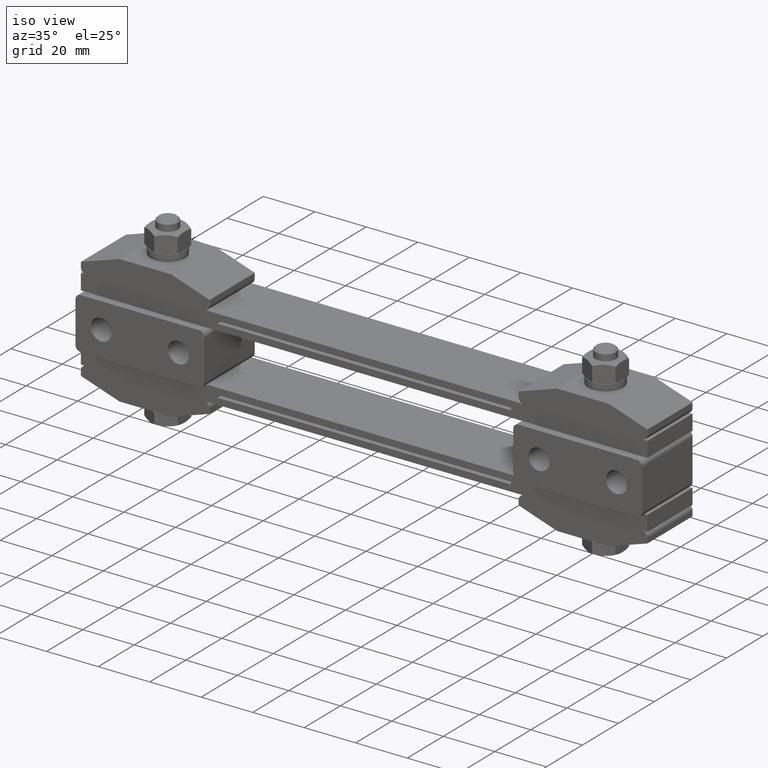
[diagram: clean part render]
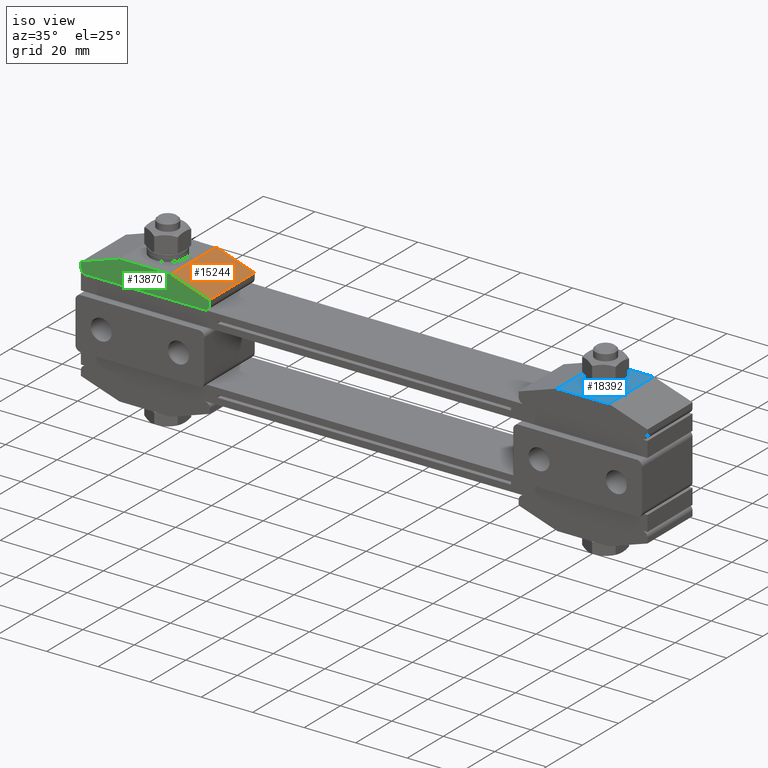
[diagram: same view with three faces highlighted in distinct colors, each labeled with its STEP entity id]
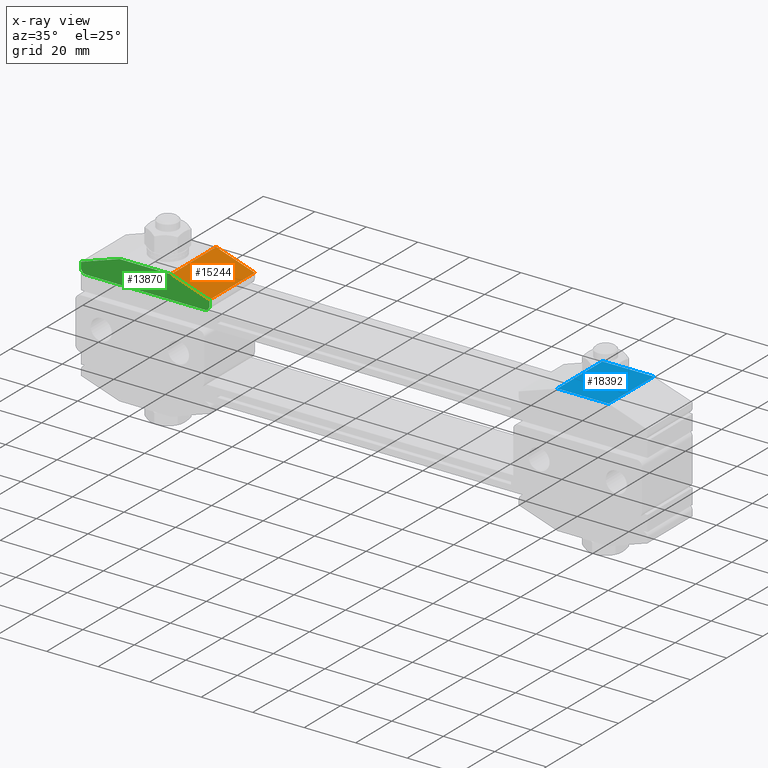
[diagram: x-ray of the same camera — body ghosted, the three highlighted faces saturated]
A machine part, iso view with three faces highlighted in distinct colors.
The next image is the same camera in x-ray (body ghosted, the three faces saturated) — at least one of them is partly hidden behind the body in this view.
Their STEP definitions:

[orange] entity #15244 — the highlighted planar face has unit normal (-0.3162, 0, -0.9487).
#329 = VERTEX_POINT ( 'NONE', #20769 ) ;
#831 = ORIENTED_EDGE ( 'NONE', *, *, #15313, .F. ) ;
#1012 = VECTOR ( 'NONE', #14471, 1000.000000000000100 ) ;
#1293 = EDGE_CURVE ( 'NONE', #21486, #16862, #8346, .T. ) ;
#1310 = CARTESIAN_POINT ( 'NONE',  ( -59.99999999999998600, -14.00000000000000200, 32.49999999999997200 ) ) ;
#1922 = LINE ( 'NONE', #16842, #18745 ) ;
#5017 = CARTESIAN_POINT ( 'NONE',  ( -74.99999999999998600, 12.49999999999999800, 37.49999999999997900 ) ) ;
#5495 = ORIENTED_EDGE ( 'NONE', *, *, #5776, .T. ) ;
#5776 = EDGE_CURVE ( 'NONE', #21486, #329, #12610, .T. ) ;
#6018 = DIRECTION ( 'NONE',  ( -0.3162277660168380500, 1.755416734288351200E-017, -0.9486832980505137700 ) ) ;
#8346 = LINE ( 'NONE', #10626, #1012 ) ;
#8564 = LINE ( 'NONE', #14175, #21050 ) ;
#9547 = FACE_OUTER_BOUND ( 'NONE', #13558, .T. ) ;
#10626 = CARTESIAN_POINT ( 'NONE',  ( -58.79999999999997600, -12.50000000000000400, 32.09999999999997300 ) ) ;
#12610 = LINE ( 'NONE', #1310, #22387 ) ;
#13558 = EDGE_LOOP ( 'NONE', ( #5495, #18512, #831, #17180 ) ) ;
#13644 = CARTESIAN_POINT ( 'NONE',  ( -74.99999999999998600, -12.50000000000000200, 37.49999999999997900 ) ) ;
#14100 = AXIS2_PLACEMENT_3D ( 'NONE', #16402, #6018, #21846 ) ;
#14175 = CARTESIAN_POINT ( 'NONE',  ( -58.79999999999997600, 12.49999999999999600, 32.09999999999997300 ) ) ;
#14471 = DIRECTION ( 'NONE',  ( -0.9486832980505137700, 5.266250202865051300E-017, 0.3162277660168380500 ) ) ;
#15120 = DIRECTION ( 'NONE',  ( -2.220446049250314600E-016, 1.000000000000000000, 0.0000000000000000000 ) ) ;
#15244 = ADVANCED_FACE ( 'NONE', ( #9547 ), #20024, .F. ) ;
#15313 = EDGE_CURVE ( 'NONE', #16862, #21550, #1922, .T. ) ;
#16402 = CARTESIAN_POINT ( 'NONE',  ( -74.99999999999998600, -14.00000000000000000, 37.49999999999997900 ) ) ;
#16842 = CARTESIAN_POINT ( 'NONE',  ( -74.99999999999998600, -12.50000000000000200, 37.49999999999997900 ) ) ;
#16862 = VERTEX_POINT ( 'NONE', #13644 ) ;
#17180 = ORIENTED_EDGE ( 'NONE', *, *, #1293, .F. ) ;
#18512 = ORIENTED_EDGE ( 'NONE', *, *, #19419, .F. ) ;
#18745 = VECTOR ( 'NONE', #20322, 1000.000000000000000 ) ;
#19419 = EDGE_CURVE ( 'NONE', #21550, #329, #8564, .T. ) ;
#19624 = DIRECTION ( 'NONE',  ( 0.9486832980505137700, -5.266250202865051300E-017, -0.3162277660168380500 ) ) ;
#20024 = PLANE ( 'NONE',  #14100 ) ;
#20322 = DIRECTION ( 'NONE',  ( -2.220446049250314600E-016, 1.000000000000000000, 0.0000000000000000000 ) ) ;
#20723 = CARTESIAN_POINT ( 'NONE',  ( -59.99999999999998600, -12.50000000000000400, 32.49999999999997200 ) ) ;
#20769 = CARTESIAN_POINT ( 'NONE',  ( -59.99999999999998600, 12.49999999999999600, 32.49999999999997200 ) ) ;
#21050 = VECTOR ( 'NONE', #19624, 1000.000000000000100 ) ;
#21486 = VERTEX_POINT ( 'NONE', #20723 ) ;
#21550 = VERTEX_POINT ( 'NONE', #5017 ) ;
#21846 = DIRECTION ( 'NONE',  ( -0.9486832980505137700, 5.266250202865051300E-017, 0.3162277660168380500 ) ) ;
#22387 = VECTOR ( 'NONE', #15120, 1000.000000000000000 ) ;

[blue] entity #18392 — the highlighted planar face has unit normal (0, 0, -1).
#48 = LINE ( 'NONE', #22096, #21233 ) ;
#418 = VERTEX_POINT ( 'NONE', #9332 ) ;
#435 = CARTESIAN_POINT ( 'NONE',  ( 85.00000000000000000, 2.081830801498041300E-014, 37.49999999999997900 ) ) ;
#566 = PLANE ( 'NONE',  #15157 ) ;
#935 = AXIS2_PLACEMENT_3D ( 'NONE', #435, #5550, #16141 ) ;
#1015 = FACE_OUTER_BOUND ( 'NONE', #10986, .T. ) ;
#1159 = CARTESIAN_POINT ( 'NONE',  ( 110.0000000000000000, -12.49999999999998900, 37.49999999999997900 ) ) ;
#1593 = DIRECTION ( 'NONE',  ( 0.0000000000000000000, -1.000000000000000000, 0.0000000000000000000 ) ) ;
#1663 = VERTEX_POINT ( 'NONE', #1777 ) ;
#1777 = CARTESIAN_POINT ( 'NONE',  ( 95.00000000000000000, -12.49999999999998800, 37.49999999999997900 ) ) ;
#2153 = ORIENTED_EDGE ( 'NONE', *, *, #19459, .T. ) ;
#3895 = EDGE_CURVE ( 'NONE', #14210, #18401, #14452, .T. ) ;
#4648 = DIRECTION ( 'NONE',  ( -1.000000000000000000, 1.110223024625156500E-016, 0.0000000000000000000 ) ) ;
#5550 = DIRECTION ( 'NONE',  ( 0.0000000000000000000, 0.0000000000000000000, -1.000000000000000000 ) ) ;
#6403 = DIRECTION ( 'NONE',  ( 1.000000000000000000, -1.110223024625156500E-016, 0.0000000000000000000 ) ) ;
#6660 = EDGE_CURVE ( 'NONE', #14210, #22264, #48, .T. ) ;
#7951 = CARTESIAN_POINT ( 'NONE',  ( 95.00000000000000000, -12.49999999999998800, 37.49999999999997900 ) ) ;
#8771 = DIRECTION ( 'NONE',  ( -1.000000000000000000, 1.110223024625156500E-016, 0.0000000000000000000 ) ) ;
#9084 = DIRECTION ( 'NONE',  ( -1.000000000000000000, 1.110223024625156500E-016, 0.0000000000000000000 ) ) ;
#9095 = ORIENTED_EDGE ( 'NONE', *, *, #12111, .F. ) ;
#9166 = CARTESIAN_POINT ( 'NONE',  ( 110.0000000000000000, -12.49999999999998900, 37.49999999999997900 ) ) ;
#9332 = CARTESIAN_POINT ( 'NONE',  ( 80.90000000000002000, 2.127349945507672400E-014, 37.49999999999997900 ) ) ;
#10188 = CARTESIAN_POINT ( 'NONE',  ( 75.00000000000000000, -12.49999999999998400, 37.49999999999997900 ) ) ;
#10890 = VECTOR ( 'NONE', #16520, 1000.000000000000000 ) ;
#10986 = EDGE_LOOP ( 'NONE', ( #9095, #12730, #13324, #20387 ) ) ;
#11329 = CIRCLE ( 'NONE', #935, 4.099999999999992500 ) ;
#11609 = EDGE_CURVE ( 'NONE', #418, #14111, #15717, .T. ) ;
#12111 = EDGE_CURVE ( 'NONE', #1663, #18401, #19190, .T. ) ;
#12730 = ORIENTED_EDGE ( 'NONE', *, *, #16789, .T. ) ;
#12994 = CARTESIAN_POINT ( 'NONE',  ( 89.09999999999999400, 2.086522176253451100E-014, 37.49999999999997900 ) ) ;
#13247 = AXIS2_PLACEMENT_3D ( 'NONE', #17484, #22432, #8771 ) ;
#13283 = CARTESIAN_POINT ( 'NONE',  ( 75.00000000000001400, 12.50000000000002500, 37.49999999999997900 ) ) ;
#13324 = ORIENTED_EDGE ( 'NONE', *, *, #6660, .F. ) ;
#14111 = VERTEX_POINT ( 'NONE', #12994 ) ;
#14187 = VECTOR ( 'NONE', #1593, 1000.000000000000000 ) ;
#14210 = VERTEX_POINT ( 'NONE', #13283 ) ;
#14452 = LINE ( 'NONE', #10188, #14187 ) ;
#15157 = AXIS2_PLACEMENT_3D ( 'NONE', #9166, #16051, #9084 ) ;
#15180 = EDGE_LOOP ( 'NONE', ( #22554, #2153 ) ) ;
#15717 = CIRCLE ( 'NONE', #13247, 4.099999999999992500 ) ;
#16051 = DIRECTION ( 'NONE',  ( 0.0000000000000000000, 0.0000000000000000000, -1.000000000000000000 ) ) ;
#16141 = DIRECTION ( 'NONE',  ( -1.000000000000000000, 1.110223024625156500E-016, 0.0000000000000000000 ) ) ;
#16520 = DIRECTION ( 'NONE',  ( 0.0000000000000000000, 1.000000000000000000, 0.0000000000000000000 ) ) ;
#16789 = EDGE_CURVE ( 'NONE', #1663, #22264, #21414, .T. ) ;
#17484 = CARTESIAN_POINT ( 'NONE',  ( 85.00000000000000000, 2.081830801498041300E-014, 37.49999999999997900 ) ) ;
#17879 = CARTESIAN_POINT ( 'NONE',  ( 95.00000000000000000, 12.50000000000002100, 37.49999999999997900 ) ) ;
#18380 = VECTOR ( 'NONE', #4648, 1000.000000000000000 ) ;
#18392 = ADVANCED_FACE ( 'NONE', ( #19450, #1015 ), #566, .F. ) ;
#18401 = VERTEX_POINT ( 'NONE', #20903 ) ;
#19190 = LINE ( 'NONE', #1159, #18380 ) ;
#19450 = FACE_BOUND ( 'NONE', #15180, .T. ) ;
#19459 = EDGE_CURVE ( 'NONE', #14111, #418, #11329, .T. ) ;
#20387 = ORIENTED_EDGE ( 'NONE', *, *, #3895, .T. ) ;
#20903 = CARTESIAN_POINT ( 'NONE',  ( 75.00000000000000000, -12.49999999999998400, 37.49999999999997900 ) ) ;
#21233 = VECTOR ( 'NONE', #6403, 1000.000000000000000 ) ;
#21414 = LINE ( 'NONE', #7951, #10890 ) ;
#22096 = CARTESIAN_POINT ( 'NONE',  ( 110.0000000000000000, 12.50000000000002000, 37.49999999999997900 ) ) ;
#22264 = VERTEX_POINT ( 'NONE', #17879 ) ;
#22432 = DIRECTION ( 'NONE',  ( 0.0000000000000000000, 0.0000000000000000000, -1.000000000000000000 ) ) ;
#22554 = ORIENTED_EDGE ( 'NONE', *, *, #11609, .T. ) ;

[green] entity #13870 — the highlighted planar face has unit normal (-0, 1, 0).
#347 = DIRECTION ( 'NONE',  ( 0.0000000000000000000, 0.0000000000000000000, -1.000000000000000000 ) ) ;
#396 = EDGE_CURVE ( 'NONE', #10064, #15589, #526, .T. ) ;
#526 = CIRCLE ( 'NONE', #20550, 2.000000000000001800 ) ;
#591 = CARTESIAN_POINT ( 'NONE',  ( -94.99999999999998600, -12.50000000000000200, 37.49999999999997900 ) ) ;
#1012 = VECTOR ( 'NONE', #14471, 1000.000000000000100 ) ;
#1293 = EDGE_CURVE ( 'NONE', #21486, #16862, #8346, .T. ) ;
#2242 = DIRECTION ( 'NONE',  ( 2.220446049250314600E-016, -1.000000000000000000, -0.0000000000000000000 ) ) ;
#2363 = LINE ( 'NONE', #19213, #13255 ) ;
#2836 = AXIS2_PLACEMENT_3D ( 'NONE', #17596, #7145, #12405 ) ;
#4122 = EDGE_CURVE ( 'NONE', #10064, #17282, #9701, .T. ) ;
#4815 = VECTOR ( 'NONE', #21009, 1000.000000000000000 ) ;
#4959 = CARTESIAN_POINT ( 'NONE',  ( -61.99999999999998600, -12.50000000000000400, 28.49999999999997500 ) ) ;
#5213 = DIRECTION ( 'NONE',  ( -1.000000000000000000, 5.551115123125782700E-017, 0.0000000000000000000 ) ) ;
#5754 = ORIENTED_EDGE ( 'NONE', *, *, #9434, .T. ) ;
#5864 = DIRECTION ( 'NONE',  ( 2.220446049250314600E-016, -1.000000000000000000, -0.0000000000000000000 ) ) ;
#6317 = EDGE_LOOP ( 'NONE', ( #9321, #22054, #15129, #17658, #15298, #16331, #5754, #11057 ) ) ;
#7113 = LINE ( 'NONE', #17528, #7653 ) ;
#7145 = DIRECTION ( 'NONE',  ( -2.220446049250314600E-016, 1.000000000000000000, 0.0000000000000000000 ) ) ;
#7425 = EDGE_CURVE ( 'NONE', #13761, #21486, #7113, .T. ) ;
#7653 = VECTOR ( 'NONE', #14184, 1000.000000000000000 ) ;
#8346 = LINE ( 'NONE', #10626, #1012 ) ;
#9010 = VERTEX_POINT ( 'NONE', #591 ) ;
#9045 = PLANE ( 'NONE',  #2836 ) ;
#9132 = CARTESIAN_POINT ( 'NONE',  ( -61.99999999999998600, -12.50000000000000400, 30.49999999999997900 ) ) ;
#9321 = ORIENTED_EDGE ( 'NONE', *, *, #4122, .F. ) ;
#9434 = EDGE_CURVE ( 'NONE', #16862, #9010, #2363, .T. ) ;
#9627 = CARTESIAN_POINT ( 'NONE',  ( -109.9999999999999700, -12.50000000000000000, 30.49999999999997900 ) ) ;
#9701 = LINE ( 'NONE', #12478, #4815 ) ;
#9942 = VECTOR ( 'NONE', #18798, 1000.000000000000000 ) ;
#10064 = VERTEX_POINT ( 'NONE', #9627 ) ;
#10626 = CARTESIAN_POINT ( 'NONE',  ( -58.79999999999997600, -12.50000000000000400, 32.09999999999997300 ) ) ;
#10978 = EDGE_CURVE ( 'NONE', #18795, #13761, #14365, .T. ) ;
#11057 = ORIENTED_EDGE ( 'NONE', *, *, #14755, .T. ) ;
#12405 = DIRECTION ( 'NONE',  ( 0.0000000000000000000, 0.0000000000000000000, -1.000000000000000000 ) ) ;
#12446 = CARTESIAN_POINT ( 'NONE',  ( -107.9999999999999700, -12.50000000000000000, 28.49999999999997500 ) ) ;
#12478 = CARTESIAN_POINT ( 'NONE',  ( -109.9999999999999700, -12.50000000000000000, 28.49999999999997500 ) ) ;
#13183 = CARTESIAN_POINT ( 'NONE',  ( -109.9999999999999700, -12.50000000000000000, 32.49999999999997900 ) ) ;
#13255 = VECTOR ( 'NONE', #5213, 1000.000000000000000 ) ;
#13644 = CARTESIAN_POINT ( 'NONE',  ( -74.99999999999998600, -12.50000000000000200, 37.49999999999997900 ) ) ;
#13761 = VERTEX_POINT ( 'NONE', #16856 ) ;
#13870 = ADVANCED_FACE ( 'NONE', ( #22382 ), #9045, .F. ) ;
#14184 = DIRECTION ( 'NONE',  ( 0.0000000000000000000, -0.0000000000000000000, 1.000000000000000000 ) ) ;
#14365 = CIRCLE ( 'NONE', #21287, 2.000000000000001800 ) ;
#14471 = DIRECTION ( 'NONE',  ( -0.9486832980505137700, 5.266250202865051300E-017, 0.3162277660168380500 ) ) ;
#14755 = EDGE_CURVE ( 'NONE', #9010, #17282, #18510, .T. ) ;
#15129 = ORIENTED_EDGE ( 'NONE', *, *, #19238, .F. ) ;
#15267 = VECTOR ( 'NONE', #21642, 1000.000000000000000 ) ;
#15298 = ORIENTED_EDGE ( 'NONE', *, *, #7425, .T. ) ;
#15589 = VERTEX_POINT ( 'NONE', #12446 ) ;
#16180 = LINE ( 'NONE', #20478, #9942 ) ;
#16331 = ORIENTED_EDGE ( 'NONE', *, *, #1293, .T. ) ;
#16856 = CARTESIAN_POINT ( 'NONE',  ( -59.99999999999998600, -12.50000000000000400, 30.49999999999997900 ) ) ;
#16862 = VERTEX_POINT ( 'NONE', #13644 ) ;
#17282 = VERTEX_POINT ( 'NONE', #13183 ) ;
#17528 = CARTESIAN_POINT ( 'NONE',  ( -59.99999999999998600, -12.50000000000000400, 28.49999999999997500 ) ) ;
#17596 = CARTESIAN_POINT ( 'NONE',  ( -59.99999999999998600, -12.50000000000000400, 28.49999999999997500 ) ) ;
#17658 = ORIENTED_EDGE ( 'NONE', *, *, #10978, .T. ) ;
#17973 = DIRECTION ( 'NONE',  ( 0.0000000000000000000, 0.0000000000000000000, -1.000000000000000000 ) ) ;
#18229 = CARTESIAN_POINT ( 'NONE',  ( -66.19999999999996000, -12.50000000000000400, 47.09999999999997300 ) ) ;
#18510 = LINE ( 'NONE', #18229, #15267 ) ;
#18795 = VERTEX_POINT ( 'NONE', #4959 ) ;
#18798 = DIRECTION ( 'NONE',  ( -1.000000000000000000, 5.551115123125782700E-017, 0.0000000000000000000 ) ) ;
#19213 = CARTESIAN_POINT ( 'NONE',  ( -59.99999999999998600, -12.50000000000000400, 37.49999999999997900 ) ) ;
#19238 = EDGE_CURVE ( 'NONE', #18795, #15589, #16180, .T. ) ;
#20478 = CARTESIAN_POINT ( 'NONE',  ( -59.99999999999998600, -12.50000000000000400, 28.49999999999997500 ) ) ;
#20550 = AXIS2_PLACEMENT_3D ( 'NONE', #21439, #2242, #347 ) ;
#20723 = CARTESIAN_POINT ( 'NONE',  ( -59.99999999999998600, -12.50000000000000400, 32.49999999999997200 ) ) ;
#21009 = DIRECTION ( 'NONE',  ( 0.0000000000000000000, -0.0000000000000000000, 1.000000000000000000 ) ) ;
#21287 = AXIS2_PLACEMENT_3D ( 'NONE', #9132, #5864, #17973 ) ;
#21439 = CARTESIAN_POINT ( 'NONE',  ( -107.9999999999999700, -12.50000000000000000, 30.49999999999997900 ) ) ;
#21486 = VERTEX_POINT ( 'NONE', #20723 ) ;
#21642 = DIRECTION ( 'NONE',  ( -0.9486832980505138800, 5.266250202865052000E-017, -0.3162277660168378300 ) ) ;
#22054 = ORIENTED_EDGE ( 'NONE', *, *, #396, .T. ) ;
#22382 = FACE_OUTER_BOUND ( 'NONE', #6317, .T. ) ;